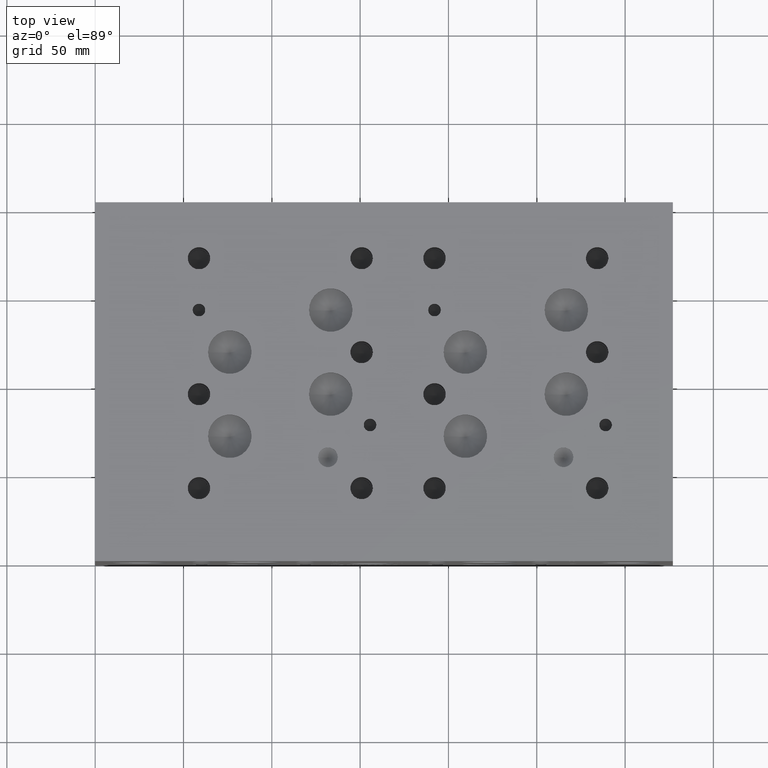
[diagram: clean part render]
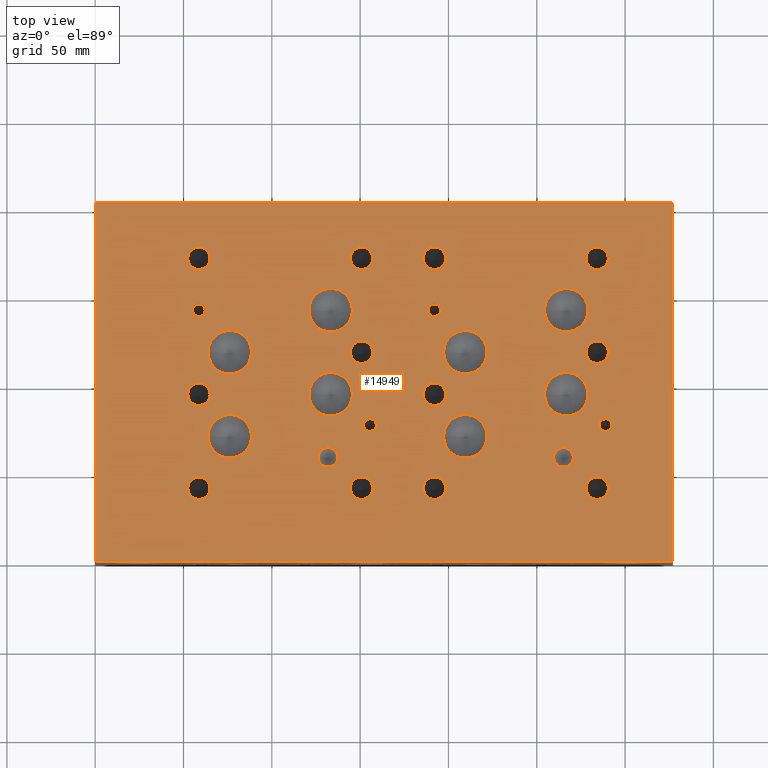
[diagram: same view with one face highlighted and labeled with its STEP entity id]
A machine part, top view. The second image highlights one B-rep face of the part: STEP entity #14949.
In plain terms, the highlighted planar face has unit normal (0, 0, 1).
Its self-contained STEP definition (entity closure, byte-faithful):
#575=CIRCLE('',#15858,6.35);
#576=CIRCLE('',#15859,6.35);
#582=CIRCLE('',#15869,6.35);
#583=CIRCLE('',#15870,6.35);
#589=CIRCLE('',#15880,6.35);
#590=CIRCLE('',#15881,6.35);
#596=CIRCLE('',#15891,6.35);
#597=CIRCLE('',#15892,6.35);
#603=CIRCLE('',#15902,6.35);
#604=CIRCLE('',#15903,6.35);
#610=CIRCLE('',#15913,6.35);
#611=CIRCLE('',#15914,6.35);
#614=CIRCLE('',#15920,5.5626);
#615=CIRCLE('',#15921,5.5626);
#618=CIRCLE('',#15926,5.5626);
#619=CIRCLE('',#15927,5.5626);
#622=CIRCLE('',#15932,12.3063);
#623=CIRCLE('',#15933,12.3063);
#626=CIRCLE('',#15938,12.3063);
#627=CIRCLE('',#15939,12.3063);
#630=CIRCLE('',#15944,12.3063);
#631=CIRCLE('',#15945,12.3063);
#634=CIRCLE('',#15950,12.3063);
#635=CIRCLE('',#15951,12.3063);
#638=CIRCLE('',#15956,12.3063);
#639=CIRCLE('',#15957,12.3063);
#642=CIRCLE('',#15962,12.3063);
#643=CIRCLE('',#15963,12.3063);
#646=CIRCLE('',#15968,12.3063);
#647=CIRCLE('',#15969,12.3063);
#650=CIRCLE('',#15974,12.3063);
#651=CIRCLE('',#15975,12.3063);
#654=CIRCLE('',#15980,3.5687);
#655=CIRCLE('',#15981,3.5687);
#658=CIRCLE('',#15986,3.5687);
#659=CIRCLE('',#15987,3.5687);
#662=CIRCLE('',#15992,3.5687);
#663=CIRCLE('',#15993,3.5687);
#666=CIRCLE('',#15998,3.5687);
#667=CIRCLE('',#15999,3.5687);
#673=CIRCLE('',#16008,6.35);
#674=CIRCLE('',#16009,6.35);
#680=CIRCLE('',#16019,6.35);
#681=CIRCLE('',#16020,6.35);
#687=CIRCLE('',#16030,6.35);
#688=CIRCLE('',#16031,6.35);
#694=CIRCLE('',#16041,6.35);
#695=CIRCLE('',#16042,6.35);
#701=CIRCLE('',#16052,6.35);
#702=CIRCLE('',#16053,6.35);
#708=CIRCLE('',#16063,6.35);
#709=CIRCLE('',#16064,6.35);
#862=FACE_BOUND('',#3000,.T.);
#863=FACE_BOUND('',#3001,.T.);
#864=FACE_BOUND('',#3002,.T.);
#865=FACE_BOUND('',#3003,.T.);
#866=FACE_BOUND('',#3004,.T.);
#867=FACE_BOUND('',#3005,.T.);
#868=FACE_BOUND('',#3006,.T.);
#869=FACE_BOUND('',#3007,.T.);
#870=FACE_BOUND('',#3008,.T.);
#871=FACE_BOUND('',#3009,.T.);
#872=FACE_BOUND('',#3010,.T.);
#873=FACE_BOUND('',#3011,.T.);
#874=FACE_BOUND('',#3012,.T.);
#875=FACE_BOUND('',#3013,.T.);
#876=FACE_BOUND('',#3014,.T.);
#877=FACE_BOUND('',#3015,.T.);
#878=FACE_BOUND('',#3016,.T.);
#879=FACE_BOUND('',#3017,.T.);
#880=FACE_BOUND('',#3018,.T.);
#881=FACE_BOUND('',#3019,.T.);
#882=FACE_BOUND('',#3020,.T.);
#883=FACE_BOUND('',#3021,.T.);
#884=FACE_BOUND('',#3022,.T.);
#885=FACE_BOUND('',#3023,.T.);
#886=FACE_BOUND('',#3024,.T.);
#887=FACE_BOUND('',#3025,.T.);
#1297=PLANE('',#16070);
#2072=FACE_OUTER_BOUND('',#2999,.T.);
#2999=EDGE_LOOP('',(#13484,#13485,#13486,#13487));
#3000=EDGE_LOOP('',(#13488,#13489));
#3001=EDGE_LOOP('',(#13490,#13491));
#3002=EDGE_LOOP('',(#13492,#13493));
#3003=EDGE_LOOP('',(#13494,#13495));
#3004=EDGE_LOOP('',(#13496,#13497));
#3005=EDGE_LOOP('',(#13498,#13499));
#3006=EDGE_LOOP('',(#13500,#13501));
#3007=EDGE_LOOP('',(#13502,#13503));
#3008=EDGE_LOOP('',(#13504,#13505));
#3009=EDGE_LOOP('',(#13506,#13507));
#3010=EDGE_LOOP('',(#13508,#13509));
#3011=EDGE_LOOP('',(#13510,#13511));
#3012=EDGE_LOOP('',(#13512,#13513));
#3013=EDGE_LOOP('',(#13514,#13515));
#3014=EDGE_LOOP('',(#13516,#13517));
#3015=EDGE_LOOP('',(#13518,#13519));
#3016=EDGE_LOOP('',(#13520,#13521));
#3017=EDGE_LOOP('',(#13522,#13523));
#3018=EDGE_LOOP('',(#13524,#13525));
#3019=EDGE_LOOP('',(#13526,#13527));
#3020=EDGE_LOOP('',(#13528,#13529));
#3021=EDGE_LOOP('',(#13530,#13531));
#3022=EDGE_LOOP('',(#13532,#13533));
#3023=EDGE_LOOP('',(#13534,#13535));
#3024=EDGE_LOOP('',(#13536,#13537));
#3025=EDGE_LOOP('',(#13538,#13539));
#3061=LINE('',#19779,#4343);
#3121=LINE('',#20086,#4403);
#3438=LINE('',#22188,#4720);
#4308=LINE('',#25887,#5590);
#4343=VECTOR('',#16128,10.);
#4403=VECTOR('',#16274,10.);
#4720=VECTOR('',#16817,10.);
#5590=VECTOR('',#19561,10.);
#5925=VERTEX_POINT('',#19776);
#5926=VERTEX_POINT('',#19778);
#6001=VERTEX_POINT('',#20083);
#6002=VERTEX_POINT('',#20085);
#7195=VERTEX_POINT('',#25453);
#7196=VERTEX_POINT('',#25454);
#7203=VERTEX_POINT('',#25475);
#7204=VERTEX_POINT('',#25476);
#7211=VERTEX_POINT('',#25497);
#7212=VERTEX_POINT('',#25498);
#7219=VERTEX_POINT('',#25519);
#7220=VERTEX_POINT('',#25520);
#7227=VERTEX_POINT('',#25541);
#7228=VERTEX_POINT('',#25542);
#7235=VERTEX_POINT('',#25563);
#7236=VERTEX_POINT('',#25564);
#7240=VERTEX_POINT('',#25578);
#7241=VERTEX_POINT('',#25579);
#7245=VERTEX_POINT('',#25591);
#7246=VERTEX_POINT('',#25592);
#7250=VERTEX_POINT('',#25604);
#7251=VERTEX_POINT('',#25605);
#7255=VERTEX_POINT('',#25617);
#7256=VERTEX_POINT('',#25618);
#7260=VERTEX_POINT('',#25630);
#7261=VERTEX_POINT('',#25631);
#7265=VERTEX_POINT('',#25643);
#7266=VERTEX_POINT('',#25644);
#7270=VERTEX_POINT('',#25656);
#7271=VERTEX_POINT('',#25657);
#7275=VERTEX_POINT('',#25669);
#7276=VERTEX_POINT('',#25670);
#7280=VERTEX_POINT('',#25682);
#7281=VERTEX_POINT('',#25683);
#7285=VERTEX_POINT('',#25695);
#7286=VERTEX_POINT('',#25696);
#7290=VERTEX_POINT('',#25708);
#7291=VERTEX_POINT('',#25709);
#7295=VERTEX_POINT('',#25721);
#7296=VERTEX_POINT('',#25722);
#7300=VERTEX_POINT('',#25734);
#7301=VERTEX_POINT('',#25735);
#7305=VERTEX_POINT('',#25747);
#7306=VERTEX_POINT('',#25748);
#7313=VERTEX_POINT('',#25767);
#7314=VERTEX_POINT('',#25768);
#7321=VERTEX_POINT('',#25789);
#7322=VERTEX_POINT('',#25790);
#7329=VERTEX_POINT('',#25811);
#7330=VERTEX_POINT('',#25812);
#7337=VERTEX_POINT('',#25833);
#7338=VERTEX_POINT('',#25834);
#7345=VERTEX_POINT('',#25855);
#7346=VERTEX_POINT('',#25856);
#7353=VERTEX_POINT('',#25877);
#7354=VERTEX_POINT('',#25878);
#7405=EDGE_CURVE('',#5926,#5925,#3061,.T.);
#7505=EDGE_CURVE('',#6002,#6001,#3121,.T.);
#8012=EDGE_CURVE('',#6001,#5926,#3438,.T.);
#9218=EDGE_CURVE('',#7195,#7196,#575,.T.);
#9219=EDGE_CURVE('',#7196,#7195,#576,.T.);
#9228=EDGE_CURVE('',#7203,#7204,#582,.T.);
#9229=EDGE_CURVE('',#7204,#7203,#583,.T.);
#9238=EDGE_CURVE('',#7211,#7212,#589,.T.);
#9239=EDGE_CURVE('',#7212,#7211,#590,.T.);
#9248=EDGE_CURVE('',#7219,#7220,#596,.T.);
#9249=EDGE_CURVE('',#7220,#7219,#597,.T.);
#9258=EDGE_CURVE('',#7227,#7228,#603,.T.);
#9259=EDGE_CURVE('',#7228,#7227,#604,.T.);
#9268=EDGE_CURVE('',#7235,#7236,#610,.T.);
#9269=EDGE_CURVE('',#7236,#7235,#611,.T.);
#9275=EDGE_CURVE('',#7240,#7241,#614,.T.);
#9276=EDGE_CURVE('',#7241,#7240,#615,.T.);
#9281=EDGE_CURVE('',#7245,#7246,#618,.T.);
#9282=EDGE_CURVE('',#7246,#7245,#619,.T.);
#9287=EDGE_CURVE('',#7250,#7251,#622,.T.);
#9288=EDGE_CURVE('',#7251,#7250,#623,.T.);
#9293=EDGE_CURVE('',#7255,#7256,#626,.T.);
#9294=EDGE_CURVE('',#7256,#7255,#627,.T.);
#9299=EDGE_CURVE('',#7260,#7261,#630,.T.);
#9300=EDGE_CURVE('',#7261,#7260,#631,.T.);
#9305=EDGE_CURVE('',#7265,#7266,#634,.T.);
#9306=EDGE_CURVE('',#7266,#7265,#635,.T.);
#9311=EDGE_CURVE('',#7270,#7271,#638,.T.);
#9312=EDGE_CURVE('',#7271,#7270,#639,.T.);
#9317=EDGE_CURVE('',#7275,#7276,#642,.T.);
#9318=EDGE_CURVE('',#7276,#7275,#643,.T.);
#9323=EDGE_CURVE('',#7280,#7281,#646,.T.);
#9324=EDGE_CURVE('',#7281,#7280,#647,.T.);
#9329=EDGE_CURVE('',#7285,#7286,#650,.T.);
#9330=EDGE_CURVE('',#7286,#7285,#651,.T.);
#9335=EDGE_CURVE('',#7290,#7291,#654,.T.);
#9336=EDGE_CURVE('',#7291,#7290,#655,.T.);
#9341=EDGE_CURVE('',#7295,#7296,#658,.T.);
#9342=EDGE_CURVE('',#7296,#7295,#659,.T.);
#9347=EDGE_CURVE('',#7300,#7301,#662,.T.);
#9348=EDGE_CURVE('',#7301,#7300,#663,.T.);
#9353=EDGE_CURVE('',#7305,#7306,#666,.T.);
#9354=EDGE_CURVE('',#7306,#7305,#667,.T.);
#9362=EDGE_CURVE('',#7313,#7314,#673,.T.);
#9363=EDGE_CURVE('',#7314,#7313,#674,.T.);
#9372=EDGE_CURVE('',#7321,#7322,#680,.T.);
#9373=EDGE_CURVE('',#7322,#7321,#681,.T.);
#9382=EDGE_CURVE('',#7329,#7330,#687,.T.);
#9383=EDGE_CURVE('',#7330,#7329,#688,.T.);
#9392=EDGE_CURVE('',#7337,#7338,#694,.T.);
#9393=EDGE_CURVE('',#7338,#7337,#695,.T.);
#9402=EDGE_CURVE('',#7345,#7346,#701,.T.);
#9403=EDGE_CURVE('',#7346,#7345,#702,.T.);
#9412=EDGE_CURVE('',#7353,#7354,#708,.T.);
#9413=EDGE_CURVE('',#7354,#7353,#709,.T.);
#9417=EDGE_CURVE('',#5925,#6002,#4308,.T.);
#13484=ORIENTED_EDGE('',*,*,#8012,.T.);
#13485=ORIENTED_EDGE('',*,*,#7405,.T.);
#13486=ORIENTED_EDGE('',*,*,#9417,.T.);
#13487=ORIENTED_EDGE('',*,*,#7505,.T.);
#13488=ORIENTED_EDGE('',*,*,#9218,.T.);
#13489=ORIENTED_EDGE('',*,*,#9219,.T.);
#13490=ORIENTED_EDGE('',*,*,#9228,.T.);
#13491=ORIENTED_EDGE('',*,*,#9229,.T.);
#13492=ORIENTED_EDGE('',*,*,#9238,.T.);
#13493=ORIENTED_EDGE('',*,*,#9239,.T.);
#13494=ORIENTED_EDGE('',*,*,#9248,.T.);
#13495=ORIENTED_EDGE('',*,*,#9249,.T.);
#13496=ORIENTED_EDGE('',*,*,#9258,.T.);
#13497=ORIENTED_EDGE('',*,*,#9259,.T.);
#13498=ORIENTED_EDGE('',*,*,#9268,.T.);
#13499=ORIENTED_EDGE('',*,*,#9269,.T.);
#13500=ORIENTED_EDGE('',*,*,#9275,.T.);
#13501=ORIENTED_EDGE('',*,*,#9276,.T.);
#13502=ORIENTED_EDGE('',*,*,#9281,.T.);
#13503=ORIENTED_EDGE('',*,*,#9282,.T.);
#13504=ORIENTED_EDGE('',*,*,#9287,.T.);
#13505=ORIENTED_EDGE('',*,*,#9288,.T.);
#13506=ORIENTED_EDGE('',*,*,#9293,.T.);
#13507=ORIENTED_EDGE('',*,*,#9294,.T.);
#13508=ORIENTED_EDGE('',*,*,#9299,.T.);
#13509=ORIENTED_EDGE('',*,*,#9300,.T.);
#13510=ORIENTED_EDGE('',*,*,#9305,.T.);
#13511=ORIENTED_EDGE('',*,*,#9306,.T.);
#13512=ORIENTED_EDGE('',*,*,#9311,.T.);
#13513=ORIENTED_EDGE('',*,*,#9312,.T.);
#13514=ORIENTED_EDGE('',*,*,#9317,.T.);
#13515=ORIENTED_EDGE('',*,*,#9318,.T.);
#13516=ORIENTED_EDGE('',*,*,#9323,.T.);
#13517=ORIENTED_EDGE('',*,*,#9324,.T.);
#13518=ORIENTED_EDGE('',*,*,#9329,.T.);
#13519=ORIENTED_EDGE('',*,*,#9330,.T.);
#13520=ORIENTED_EDGE('',*,*,#9335,.T.);
#13521=ORIENTED_EDGE('',*,*,#9336,.T.);
#13522=ORIENTED_EDGE('',*,*,#9341,.T.);
#13523=ORIENTED_EDGE('',*,*,#9342,.T.);
#13524=ORIENTED_EDGE('',*,*,#9347,.T.);
#13525=ORIENTED_EDGE('',*,*,#9348,.T.);
#13526=ORIENTED_EDGE('',*,*,#9353,.T.);
#13527=ORIENTED_EDGE('',*,*,#9354,.T.);
#13528=ORIENTED_EDGE('',*,*,#9362,.T.);
#13529=ORIENTED_EDGE('',*,*,#9363,.T.);
#13530=ORIENTED_EDGE('',*,*,#9372,.T.);
#13531=ORIENTED_EDGE('',*,*,#9373,.T.);
#13532=ORIENTED_EDGE('',*,*,#9382,.T.);
#13533=ORIENTED_EDGE('',*,*,#9383,.T.);
#13534=ORIENTED_EDGE('',*,*,#9392,.T.);
#13535=ORIENTED_EDGE('',*,*,#9393,.T.);
#13536=ORIENTED_EDGE('',*,*,#9402,.T.);
#13537=ORIENTED_EDGE('',*,*,#9403,.T.);
#13538=ORIENTED_EDGE('',*,*,#9412,.T.);
#13539=ORIENTED_EDGE('',*,*,#9413,.T.);
#14949=ADVANCED_FACE('',(#2072,#862,#863,#864,#865,#866,#867,#868,#869,
#870,#871,#872,#873,#874,#875,#876,#877,#878,#879,#880,#881,#882,#883,#884,
#885,#886,#887),#1297,.T.);
#15858=AXIS2_PLACEMENT_3D('',#25455,#19077,#19078);
#15859=AXIS2_PLACEMENT_3D('',#25456,#19079,#19080);
#15869=AXIS2_PLACEMENT_3D('',#25477,#19102,#19103);
#15870=AXIS2_PLACEMENT_3D('',#25478,#19104,#19105);
#15880=AXIS2_PLACEMENT_3D('',#25499,#19127,#19128);
#15881=AXIS2_PLACEMENT_3D('',#25500,#19129,#19130);
#15891=AXIS2_PLACEMENT_3D('',#25521,#19152,#19153);
#15892=AXIS2_PLACEMENT_3D('',#25522,#19154,#19155);
#15902=AXIS2_PLACEMENT_3D('',#25543,#19177,#19178);
#15903=AXIS2_PLACEMENT_3D('',#25544,#19179,#19180);
#15913=AXIS2_PLACEMENT_3D('',#25565,#19202,#19203);
#15914=AXIS2_PLACEMENT_3D('',#25566,#19204,#19205);
#15920=AXIS2_PLACEMENT_3D('',#25580,#19219,#19220);
#15921=AXIS2_PLACEMENT_3D('',#25581,#19221,#19222);
#15926=AXIS2_PLACEMENT_3D('',#25593,#19233,#19234);
#15927=AXIS2_PLACEMENT_3D('',#25594,#19235,#19236);
#15932=AXIS2_PLACEMENT_3D('',#25606,#19247,#19248);
#15933=AXIS2_PLACEMENT_3D('',#25607,#19249,#19250);
#15938=AXIS2_PLACEMENT_3D('',#25619,#19261,#19262);
#15939=AXIS2_PLACEMENT_3D('',#25620,#19263,#19264);
#15944=AXIS2_PLACEMENT_3D('',#25632,#19275,#19276);
#15945=AXIS2_PLACEMENT_3D('',#25633,#19277,#19278);
#15950=AXIS2_PLACEMENT_3D('',#25645,#19289,#19290);
#15951=AXIS2_PLACEMENT_3D('',#25646,#19291,#19292);
#15956=AXIS2_PLACEMENT_3D('',#25658,#19303,#19304);
#15957=AXIS2_PLACEMENT_3D('',#25659,#19305,#19306);
#15962=AXIS2_PLACEMENT_3D('',#25671,#19317,#19318);
#15963=AXIS2_PLACEMENT_3D('',#25672,#19319,#19320);
#15968=AXIS2_PLACEMENT_3D('',#25684,#19331,#19332);
#15969=AXIS2_PLACEMENT_3D('',#25685,#19333,#19334);
#15974=AXIS2_PLACEMENT_3D('',#25697,#19345,#19346);
#15975=AXIS2_PLACEMENT_3D('',#25698,#19347,#19348);
#15980=AXIS2_PLACEMENT_3D('',#25710,#19359,#19360);
#15981=AXIS2_PLACEMENT_3D('',#25711,#19361,#19362);
#15986=AXIS2_PLACEMENT_3D('',#25723,#19373,#19374);
#15987=AXIS2_PLACEMENT_3D('',#25724,#19375,#19376);
#15992=AXIS2_PLACEMENT_3D('',#25736,#19387,#19388);
#15993=AXIS2_PLACEMENT_3D('',#25737,#19389,#19390);
#15998=AXIS2_PLACEMENT_3D('',#25749,#19401,#19402);
#15999=AXIS2_PLACEMENT_3D('',#25750,#19403,#19404);
#16008=AXIS2_PLACEMENT_3D('',#25769,#19423,#19424);
#16009=AXIS2_PLACEMENT_3D('',#25770,#19425,#19426);
#16019=AXIS2_PLACEMENT_3D('',#25791,#19448,#19449);
#16020=AXIS2_PLACEMENT_3D('',#25792,#19450,#19451);
#16030=AXIS2_PLACEMENT_3D('',#25813,#19473,#19474);
#16031=AXIS2_PLACEMENT_3D('',#25814,#19475,#19476);
#16041=AXIS2_PLACEMENT_3D('',#25835,#19498,#19499);
#16042=AXIS2_PLACEMENT_3D('',#25836,#19500,#19501);
#16052=AXIS2_PLACEMENT_3D('',#25857,#19523,#19524);
#16053=AXIS2_PLACEMENT_3D('',#25858,#19525,#19526);
#16063=AXIS2_PLACEMENT_3D('',#25879,#19548,#19549);
#16064=AXIS2_PLACEMENT_3D('',#25880,#19550,#19551);
#16070=AXIS2_PLACEMENT_3D('',#25890,#19566,#19567);
#16128=DIRECTION('',(0.,1.,0.));
#16274=DIRECTION('',(0.,-1.,0.));
#16817=DIRECTION('',(1.,0.,0.));
#19077=DIRECTION('center_axis',(0.,0.,-1.));
#19078=DIRECTION('ref_axis',(1.,0.,0.));
#19079=DIRECTION('center_axis',(0.,0.,-1.));
#19080=DIRECTION('ref_axis',(1.,0.,0.));
#19102=DIRECTION('center_axis',(0.,0.,-1.));
#19103=DIRECTION('ref_axis',(1.,0.,0.));
#19104=DIRECTION('center_axis',(0.,0.,-1.));
#19105=DIRECTION('ref_axis',(1.,0.,0.));
#19127=DIRECTION('center_axis',(0.,0.,-1.));
#19128=DIRECTION('ref_axis',(1.,0.,0.));
#19129=DIRECTION('center_axis',(0.,0.,-1.));
#19130=DIRECTION('ref_axis',(1.,0.,0.));
#19152=DIRECTION('center_axis',(0.,0.,-1.));
#19153=DIRECTION('ref_axis',(1.,0.,0.));
#19154=DIRECTION('center_axis',(0.,0.,-1.));
#19155=DIRECTION('ref_axis',(1.,0.,0.));
#19177=DIRECTION('center_axis',(0.,0.,-1.));
#19178=DIRECTION('ref_axis',(1.,0.,0.));
#19179=DIRECTION('center_axis',(0.,0.,-1.));
#19180=DIRECTION('ref_axis',(1.,0.,0.));
#19202=DIRECTION('center_axis',(0.,0.,-1.));
#19203=DIRECTION('ref_axis',(1.,0.,0.));
#19204=DIRECTION('center_axis',(0.,0.,-1.));
#19205=DIRECTION('ref_axis',(1.,0.,0.));
#19219=DIRECTION('center_axis',(0.,0.,-1.));
#19220=DIRECTION('ref_axis',(1.,0.,0.));
#19221=DIRECTION('center_axis',(0.,0.,-1.));
#19222=DIRECTION('ref_axis',(1.,0.,0.));
#19233=DIRECTION('center_axis',(0.,0.,-1.));
#19234=DIRECTION('ref_axis',(1.,0.,0.));
#19235=DIRECTION('center_axis',(0.,0.,-1.));
#19236=DIRECTION('ref_axis',(1.,0.,0.));
#19247=DIRECTION('center_axis',(0.,0.,-1.));
#19248=DIRECTION('ref_axis',(1.,0.,0.));
#19249=DIRECTION('center_axis',(0.,0.,-1.));
#19250=DIRECTION('ref_axis',(1.,0.,0.));
#19261=DIRECTION('center_axis',(0.,0.,-1.));
#19262=DIRECTION('ref_axis',(1.,0.,0.));
#19263=DIRECTION('center_axis',(0.,0.,-1.));
#19264=DIRECTION('ref_axis',(1.,0.,0.));
#19275=DIRECTION('center_axis',(0.,0.,-1.));
#19276=DIRECTION('ref_axis',(1.,0.,0.));
#19277=DIRECTION('center_axis',(0.,0.,-1.));
#19278=DIRECTION('ref_axis',(1.,0.,0.));
#19289=DIRECTION('center_axis',(0.,0.,-1.));
#19290=DIRECTION('ref_axis',(1.,0.,0.));
#19291=DIRECTION('center_axis',(0.,0.,-1.));
#19292=DIRECTION('ref_axis',(1.,0.,0.));
#19303=DIRECTION('center_axis',(0.,0.,-1.));
#19304=DIRECTION('ref_axis',(1.,0.,0.));
#19305=DIRECTION('center_axis',(0.,0.,-1.));
#19306=DIRECTION('ref_axis',(1.,0.,0.));
#19317=DIRECTION('center_axis',(0.,0.,-1.));
#19318=DIRECTION('ref_axis',(1.,0.,0.));
#19319=DIRECTION('center_axis',(0.,0.,-1.));
#19320=DIRECTION('ref_axis',(1.,0.,0.));
#19331=DIRECTION('center_axis',(0.,0.,-1.));
#19332=DIRECTION('ref_axis',(1.,0.,0.));
#19333=DIRECTION('center_axis',(0.,0.,-1.));
#19334=DIRECTION('ref_axis',(1.,0.,0.));
#19345=DIRECTION('center_axis',(0.,0.,-1.));
#19346=DIRECTION('ref_axis',(1.,0.,0.));
#19347=DIRECTION('center_axis',(0.,0.,-1.));
#19348=DIRECTION('ref_axis',(1.,0.,0.));
#19359=DIRECTION('center_axis',(0.,0.,-1.));
#19360=DIRECTION('ref_axis',(1.,0.,0.));
#19361=DIRECTION('center_axis',(0.,0.,-1.));
#19362=DIRECTION('ref_axis',(1.,0.,0.));
#19373=DIRECTION('center_axis',(0.,0.,-1.));
#19374=DIRECTION('ref_axis',(1.,0.,0.));
#19375=DIRECTION('center_axis',(0.,0.,-1.));
#19376=DIRECTION('ref_axis',(1.,0.,0.));
#19387=DIRECTION('center_axis',(0.,0.,-1.));
#19388=DIRECTION('ref_axis',(1.,0.,0.));
#19389=DIRECTION('center_axis',(0.,0.,-1.));
#19390=DIRECTION('ref_axis',(1.,0.,0.));
#19401=DIRECTION('center_axis',(0.,0.,-1.));
#19402=DIRECTION('ref_axis',(1.,0.,0.));
#19403=DIRECTION('center_axis',(0.,0.,-1.));
#19404=DIRECTION('ref_axis',(1.,0.,0.));
#19423=DIRECTION('center_axis',(0.,0.,-1.));
#19424=DIRECTION('ref_axis',(1.,0.,0.));
#19425=DIRECTION('center_axis',(0.,0.,-1.));
#19426=DIRECTION('ref_axis',(1.,0.,0.));
#19448=DIRECTION('center_axis',(0.,0.,-1.));
#19449=DIRECTION('ref_axis',(1.,0.,0.));
#19450=DIRECTION('center_axis',(0.,0.,-1.));
#19451=DIRECTION('ref_axis',(1.,0.,0.));
#19473=DIRECTION('center_axis',(0.,0.,-1.));
#19474=DIRECTION('ref_axis',(1.,0.,0.));
#19475=DIRECTION('center_axis',(0.,0.,-1.));
#19476=DIRECTION('ref_axis',(1.,0.,0.));
#19498=DIRECTION('center_axis',(0.,0.,-1.));
#19499=DIRECTION('ref_axis',(1.,0.,0.));
#19500=DIRECTION('center_axis',(0.,0.,-1.));
#19501=DIRECTION('ref_axis',(1.,0.,0.));
#19523=DIRECTION('center_axis',(0.,0.,-1.));
#19524=DIRECTION('ref_axis',(1.,0.,0.));
#19525=DIRECTION('center_axis',(0.,0.,-1.));
#19526=DIRECTION('ref_axis',(1.,0.,0.));
#19548=DIRECTION('center_axis',(0.,0.,-1.));
#19549=DIRECTION('ref_axis',(1.,0.,0.));
#19550=DIRECTION('center_axis',(0.,0.,-1.));
#19551=DIRECTION('ref_axis',(1.,0.,0.));
#19561=DIRECTION('',(-1.,0.,0.));
#19566=DIRECTION('center_axis',(0.,0.,1.));
#19567=DIRECTION('ref_axis',(1.,0.,0.));
#19776=CARTESIAN_POINT('',(327.025,203.2,152.4));
#19778=CARTESIAN_POINT('',(327.025,0.,152.4));
#19779=CARTESIAN_POINT('',(327.025,0.,152.4));
#20083=CARTESIAN_POINT('',(0.,0.,152.4));
#20085=CARTESIAN_POINT('',(0.,203.2,152.4));
#20086=CARTESIAN_POINT('',(0.,203.2,152.4));
#22188=CARTESIAN_POINT('',(0.,0.,152.4));
#25453=CARTESIAN_POINT('',(198.4502,41.275,152.4));
#25454=CARTESIAN_POINT('',(185.7502,41.275,152.4));
#25455=CARTESIAN_POINT('Origin',(192.1002,41.275,152.4));
#25456=CARTESIAN_POINT('Origin',(192.1002,41.275,152.4));
#25475=CARTESIAN_POINT('',(290.5252,118.2624,152.4));
#25476=CARTESIAN_POINT('',(277.8252,118.2624,152.4));
#25477=CARTESIAN_POINT('Origin',(284.1752,118.2624,152.4));
#25478=CARTESIAN_POINT('Origin',(284.1752,118.2624,152.4));
#25497=CARTESIAN_POINT('',(198.4248,171.45,152.4));
#25498=CARTESIAN_POINT('',(185.7248,171.45,152.4));
#25499=CARTESIAN_POINT('Origin',(192.0748,171.45,152.4));
#25500=CARTESIAN_POINT('Origin',(192.0748,171.45,152.4));
#25519=CARTESIAN_POINT('',(290.5252,171.45,152.4));
#25520=CARTESIAN_POINT('',(277.8252,171.45,152.4));
#25521=CARTESIAN_POINT('Origin',(284.1752,171.45,152.4));
#25522=CARTESIAN_POINT('Origin',(284.1752,171.45,152.4));
#25541=CARTESIAN_POINT('',(290.5252,41.275,152.4));
#25542=CARTESIAN_POINT('',(277.8252,41.275,152.4));
#25543=CARTESIAN_POINT('Origin',(284.1752,41.275,152.4));
#25544=CARTESIAN_POINT('Origin',(284.1752,41.275,152.4));
#25563=CARTESIAN_POINT('',(198.4502,94.4626,152.4));
#25564=CARTESIAN_POINT('',(185.7502,94.4626,152.4));
#25565=CARTESIAN_POINT('Origin',(192.1002,94.4626,152.4));
#25566=CARTESIAN_POINT('Origin',(192.1002,94.4626,152.4));
#25578=CARTESIAN_POINT('',(137.3251,58.74512,152.4));
#25579=CARTESIAN_POINT('',(126.1999,58.74512,152.4));
#25580=CARTESIAN_POINT('Origin',(131.7625,58.74512,152.4));
#25581=CARTESIAN_POINT('Origin',(131.7625,58.74512,152.4));
#25591=CARTESIAN_POINT('',(270.6878,58.7502,152.4));
#25592=CARTESIAN_POINT('',(259.5626,58.7502,152.4));
#25593=CARTESIAN_POINT('Origin',(265.1252,58.7502,152.4));
#25594=CARTESIAN_POINT('Origin',(265.1252,58.7502,152.4));
#25604=CARTESIAN_POINT('',(221.8563,118.2878,152.4));
#25605=CARTESIAN_POINT('',(197.2437,118.2878,152.4));
#25606=CARTESIAN_POINT('Origin',(209.55,118.2878,152.4));
#25607=CARTESIAN_POINT('Origin',(209.55,118.2878,152.4));
#25617=CARTESIAN_POINT('',(279.0063,94.4626,152.4));
#25618=CARTESIAN_POINT('',(254.3937,94.4626,152.4));
#25619=CARTESIAN_POINT('Origin',(266.7,94.4626,152.4));
#25620=CARTESIAN_POINT('Origin',(266.7,94.4626,152.4));
#25630=CARTESIAN_POINT('',(88.5063,118.2878,152.4));
#25631=CARTESIAN_POINT('',(63.8937,118.2878,152.4));
#25632=CARTESIAN_POINT('Origin',(76.2,118.2878,152.4));
#25633=CARTESIAN_POINT('Origin',(76.2,118.2878,152.4));
#25643=CARTESIAN_POINT('',(145.6563,94.4626,152.4));
#25644=CARTESIAN_POINT('',(121.0437,94.4626,152.4));
#25645=CARTESIAN_POINT('Origin',(133.35,94.4626,152.4));
#25646=CARTESIAN_POINT('Origin',(133.35,94.4626,152.4));
#25656=CARTESIAN_POINT('',(145.6563,142.0876,152.4));
#25657=CARTESIAN_POINT('',(121.0437,142.0876,152.4));
#25658=CARTESIAN_POINT('Origin',(133.35,142.0876,152.4));
#25659=CARTESIAN_POINT('Origin',(133.35,142.0876,152.4));
#25669=CARTESIAN_POINT('',(88.5063,70.6374,152.4));
#25670=CARTESIAN_POINT('',(63.8937,70.6374,152.4));
#25671=CARTESIAN_POINT('Origin',(76.2,70.6374,152.4));
#25672=CARTESIAN_POINT('Origin',(76.2,70.6374,152.4));
#25682=CARTESIAN_POINT('',(279.0063,142.0876,152.4));
#25683=CARTESIAN_POINT('',(254.3937,142.0876,152.4));
#25684=CARTESIAN_POINT('Origin',(266.7,142.0876,152.4));
#25685=CARTESIAN_POINT('Origin',(266.7,142.0876,152.4));
#25695=CARTESIAN_POINT('',(221.8563,70.6374,152.4));
#25696=CARTESIAN_POINT('',(197.2437,70.6374,152.4));
#25697=CARTESIAN_POINT('Origin',(209.55,70.6374,152.4));
#25698=CARTESIAN_POINT('Origin',(209.55,70.6374,152.4));
#25708=CARTESIAN_POINT('',(195.6435,142.0876,152.4));
#25709=CARTESIAN_POINT('',(188.5061,142.0876,152.4));
#25710=CARTESIAN_POINT('Origin',(192.0748,142.0876,152.4));
#25711=CARTESIAN_POINT('Origin',(192.0748,142.0876,152.4));
#25721=CARTESIAN_POINT('',(62.2935,142.0876,152.4));
#25722=CARTESIAN_POINT('',(55.1561,142.0876,152.4));
#25723=CARTESIAN_POINT('Origin',(58.7248,142.0876,152.4));
#25724=CARTESIAN_POINT('Origin',(58.7248,142.0876,152.4));
#25734=CARTESIAN_POINT('',(159.1437,77.0128,152.4));
#25735=CARTESIAN_POINT('',(152.0063,77.0128,152.4));
#25736=CARTESIAN_POINT('Origin',(155.575,77.0128,152.4));
#25737=CARTESIAN_POINT('Origin',(155.575,77.0128,152.4));
#25747=CARTESIAN_POINT('',(292.4937,77.0128,152.4));
#25748=CARTESIAN_POINT('',(285.3563,77.0128,152.4));
#25749=CARTESIAN_POINT('Origin',(288.925,77.0128,152.4));
#25750=CARTESIAN_POINT('Origin',(288.925,77.0128,152.4));
#25767=CARTESIAN_POINT('',(65.0875,41.28262,152.4));
#25768=CARTESIAN_POINT('',(52.3875,41.28262,152.4));
#25769=CARTESIAN_POINT('Origin',(58.7375,41.28262,152.4));
#25770=CARTESIAN_POINT('Origin',(58.7375,41.28262,152.4));
#25789=CARTESIAN_POINT('',(157.1752,118.2751,152.4));
#25790=CARTESIAN_POINT('',(144.4752,118.2751,152.4));
#25791=CARTESIAN_POINT('Origin',(150.8252,118.2751,152.4));
#25792=CARTESIAN_POINT('Origin',(150.8252,118.2751,152.4));
#25811=CARTESIAN_POINT('',(65.0748,171.45,152.4));
#25812=CARTESIAN_POINT('',(52.3748,171.45,152.4));
#25813=CARTESIAN_POINT('Origin',(58.7248,171.45,152.4));
#25814=CARTESIAN_POINT('Origin',(58.7248,171.45,152.4));
#25833=CARTESIAN_POINT('',(157.1625,171.45508,152.4));
#25834=CARTESIAN_POINT('',(144.4625,171.45508,152.4));
#25835=CARTESIAN_POINT('Origin',(150.8125,171.45508,152.4));
#25836=CARTESIAN_POINT('Origin',(150.8125,171.45508,152.4));
#25855=CARTESIAN_POINT('',(157.1625,41.28262,152.4));
#25856=CARTESIAN_POINT('',(144.4625,41.28262,152.4));
#25857=CARTESIAN_POINT('Origin',(150.8125,41.28262,152.4));
#25858=CARTESIAN_POINT('Origin',(150.8125,41.28262,152.4));
#25877=CARTESIAN_POINT('',(65.1002,94.4626,152.4));
#25878=CARTESIAN_POINT('',(52.4002,94.4626,152.4));
#25879=CARTESIAN_POINT('Origin',(58.7502,94.4626,152.4));
#25880=CARTESIAN_POINT('Origin',(58.7502,94.4626,152.4));
#25887=CARTESIAN_POINT('',(327.025,203.2,152.4));
#25890=CARTESIAN_POINT('Origin',(163.5125,101.6,152.4));